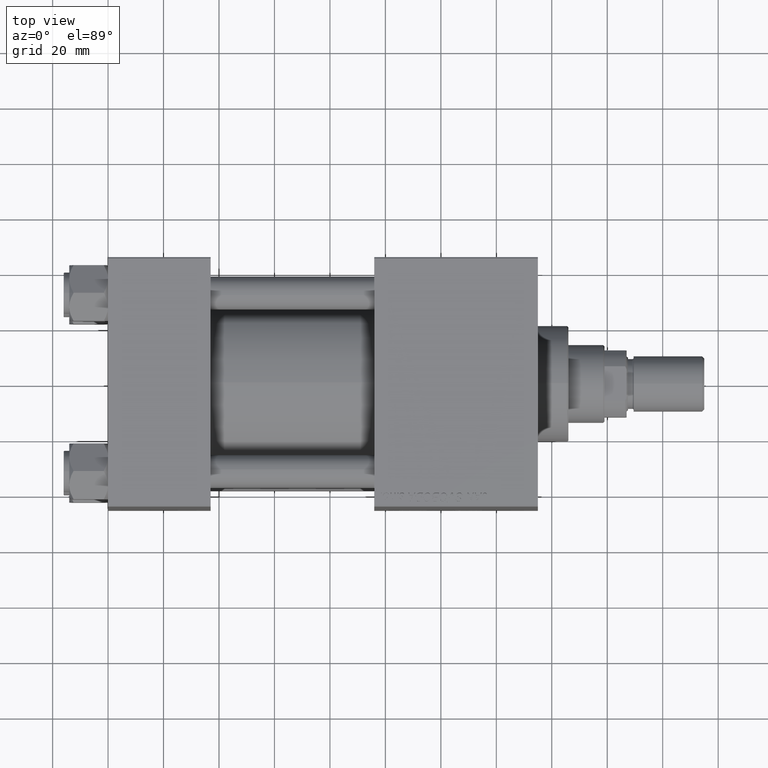
[diagram: clean part render]
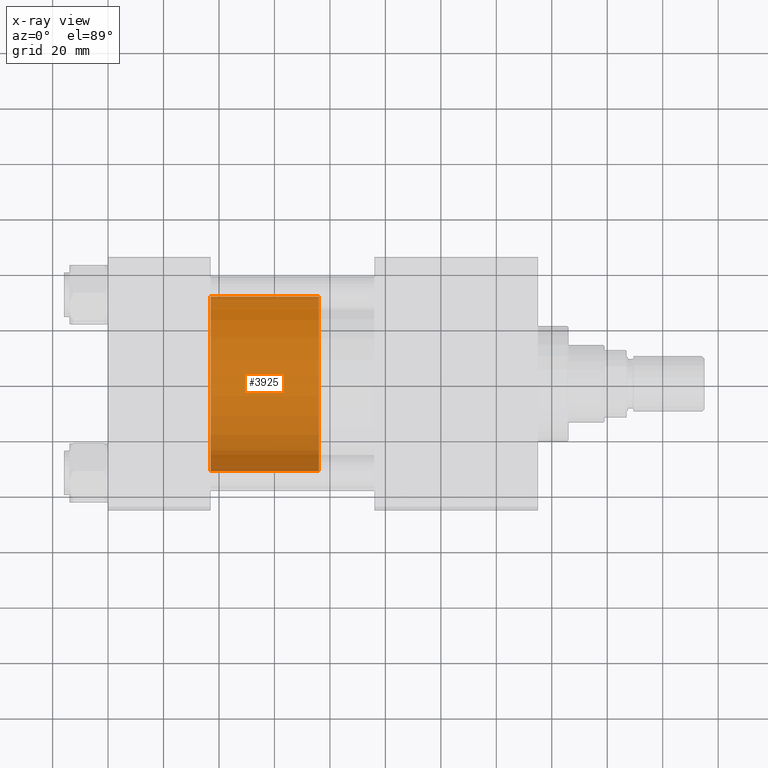
[diagram: x-ray — body ghosted, one internal face saturated and labeled with its STEP entity id]
A machine part, top view, then the same camera in x-ray: the body is ghosted and one INTERNAL B-rep face — a face not visible from any outside direction — is saturated and labeled: STEP entity #3925.
In plain terms, the highlighted cylindrical surface (partial cylindrical patch) has radius 31.5 mm, axis along (-1, 0, 0).
Its self-contained STEP definition (entity closure, byte-faithful):
#1968 = VECTOR ( 'NONE', #8122, 1000.000000000000000 ) ;
#2340 = ORIENTED_EDGE ( 'NONE', *, *, #18176, .F. ) ;
#3200 = ORIENTED_EDGE ( 'NONE', *, *, #18129, .F. ) ;
#3302 = FACE_OUTER_BOUND ( 'NONE', #6458, .T. ) ;
#3925 = ADVANCED_FACE ( 'NONE', ( #3302 ), #35340, .T. ) ;
#4545 = LINE ( 'NONE', #19917, #1968 ) ;
#4981 = VERTEX_POINT ( 'NONE', #48534 ) ;
#5842 = EDGE_CURVE ( 'NONE', #4981, #13312, #18093, .T. ) ;
#6458 = EDGE_LOOP ( 'NONE', ( #2340, #16443, #22164, #3200 ) ) ;
#8122 = DIRECTION ( 'NONE',  ( -0.000000000000000000, -0.000000000000000000, -1.000000000000000000 ) ) ;
#10420 = DIRECTION ( 'NONE',  ( -0.000000000000000000, -0.000000000000000000, -1.000000000000000000 ) ) ;
#10537 = CIRCLE ( 'NONE', #43282, 31.50000000000000000 ) ;
#12746 = DIRECTION ( 'NONE',  ( 0.000000000000000000, 0.000000000000000000, 1.000000000000000000 ) ) ;
#13312 = VERTEX_POINT ( 'NONE', #45629 ) ;
#13740 = CARTESIAN_POINT ( 'NONE',  ( 0.000000000000000000, 0.000000000000000000, 39.00000000000000000 ) ) ;
#14753 = CARTESIAN_POINT ( 'NONE',  ( 31.50000000000000000, 3.857637417314162689E-15, 39.00000000000000000 ) ) ;
#15865 = AXIS2_PLACEMENT_3D ( 'NONE', #13740, #12746, #20669 ) ;
#16443 = ORIENTED_EDGE ( 'NONE', *, *, #5842, .T. ) ;
#17630 = CARTESIAN_POINT ( 'NONE',  ( -31.50000000000000000, 0.000000000000000000, 0.000000000000000000 ) ) ;
#18093 = LINE ( 'NONE', #14753, #44240 ) ;
#18129 = EDGE_CURVE ( 'NONE', #29502, #48329, #4545, .T. ) ;
#18176 = EDGE_CURVE ( 'NONE', #4981, #29502, #27304, .T. ) ;
#18975 = DIRECTION ( 'NONE',  ( 0.000000000000000000, 0.000000000000000000, 1.000000000000000000 ) ) ;
#19917 = CARTESIAN_POINT ( 'NONE',  ( -31.50000000000000000, 0.000000000000000000, 39.00000000000000000 ) ) ;
#20669 = DIRECTION ( 'NONE',  ( 1.000000000000000000, 0.000000000000000000, 0.000000000000000000 ) ) ;
#21245 = AXIS2_PLACEMENT_3D ( 'NONE', #47127, #34842, #49954 ) ;
#22164 = ORIENTED_EDGE ( 'NONE', *, *, #32166, .T. ) ;
#27304 = CIRCLE ( 'NONE', #15865, 31.50000000000000000 ) ;
#27424 = DIRECTION ( 'NONE',  ( 1.000000000000000000, 0.000000000000000000, 0.000000000000000000 ) ) ;
#29502 = VERTEX_POINT ( 'NONE', #49551 ) ;
#32166 = EDGE_CURVE ( 'NONE', #13312, #48329, #10537, .T. ) ;
#34842 = DIRECTION ( 'NONE',  ( -0.000000000000000000, -0.000000000000000000, -1.000000000000000000 ) ) ;
#35340 = CYLINDRICAL_SURFACE ( 'NONE', #21245, 31.50000000000000000 ) ;
#42064 = CARTESIAN_POINT ( 'NONE',  ( 0.000000000000000000, 0.000000000000000000, 0.000000000000000000 ) ) ;
#43282 = AXIS2_PLACEMENT_3D ( 'NONE', #42064, #18975, #27424 ) ;
#44240 = VECTOR ( 'NONE', #10420, 1000.000000000000000 ) ;
#45629 = CARTESIAN_POINT ( 'NONE',  ( 31.50000000000000000, 3.857637417314162689E-15, 0.000000000000000000 ) ) ;
#47127 = CARTESIAN_POINT ( 'NONE',  ( 0.000000000000000000, 0.000000000000000000, 39.00000000000000000 ) ) ;
#48329 = VERTEX_POINT ( 'NONE', #17630 ) ;
#48534 = CARTESIAN_POINT ( 'NONE',  ( 31.50000000000000000, 3.857637417314162689E-15, 39.00000000000000000 ) ) ;
#49551 = CARTESIAN_POINT ( 'NONE',  ( -31.50000000000000000, 0.000000000000000000, 39.00000000000000000 ) ) ;
#49954 = DIRECTION ( 'NONE',  ( -1.000000000000000000, 0.000000000000000000, 0.000000000000000000 ) ) ;